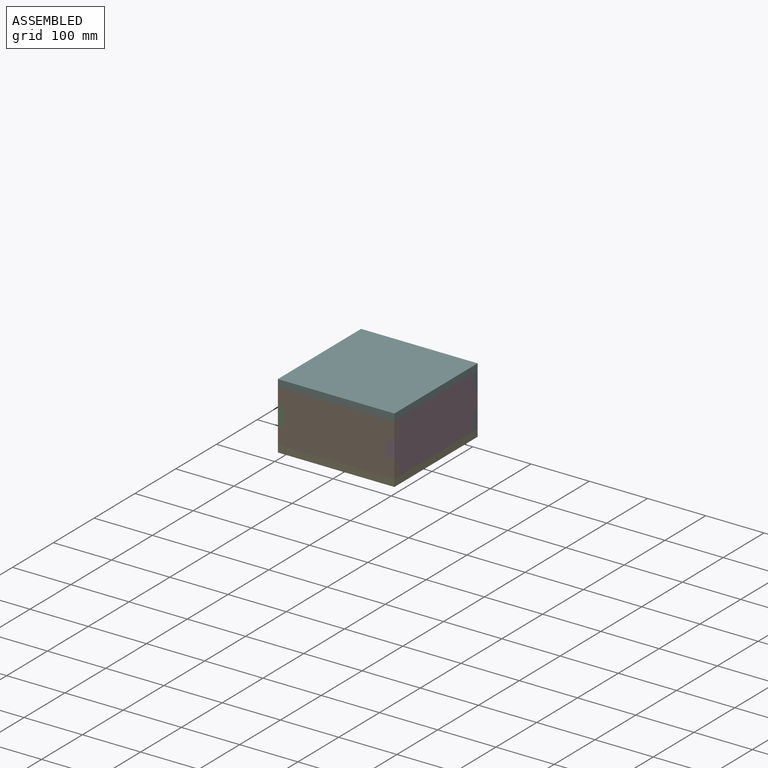
[diagram: assembled view]
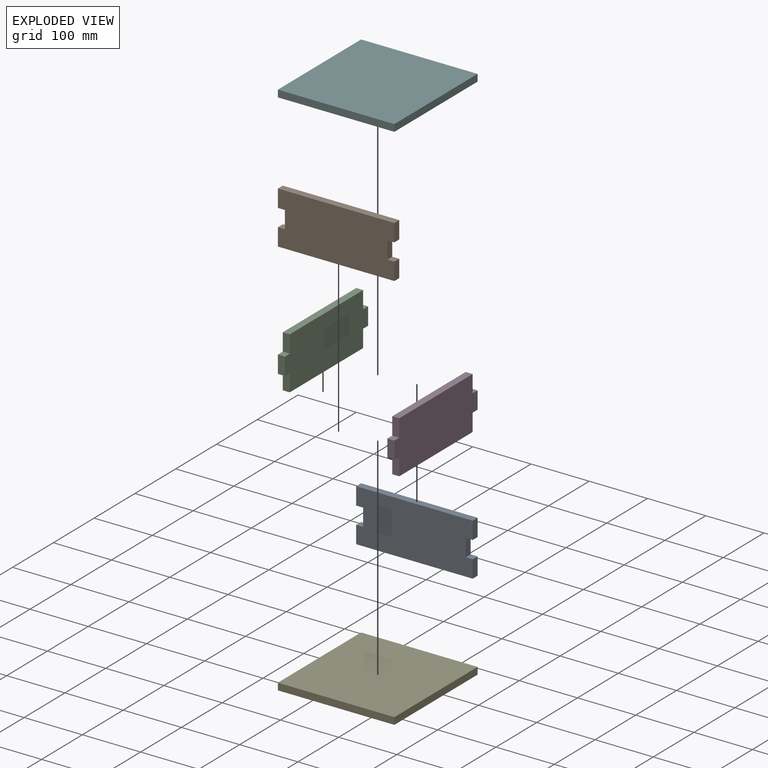
[diagram: exploded view]
GUIDED TOUR — MATED ASSEMBLY (Onshape document 58b383a48922001023aae967, AutoMate assembly 58b383a48922001023aae967_a988801f072670633765eb15_20cf71089305625ad288cfd9_default)

This assembly has 6 components, labeled P0..P5 below (a component is one placed occurrence of a part; the same part can appear more than once), held together by 5 mates. A mate is a constraint between two components; its type names the relative motion it leaves free:
  FASTENED — locks the two components together rigidly (no relative motion).
Axis/direction vectors are unit vectors and 'through' points are millimeter coordinates, both in the assembly's world frame.

MATES
  1. FASTENED "Fastened 2": P3 <-> P0, direction (-1.000, 0.000, 0.000) through (134.32, -25.53, -154.68) mm
  2. FASTENED "Fastened 5": P0 <-> P5, direction (0.000, 0.000, 1.000) through (-53.68, -25.53, -94.68) mm
  3. FASTENED "Fastened 3": P2 <-> P0, direction (0.000, 0.000, 1.000) through (-41.68, -25.53, -154.68) mm
  4. FASTENED "Fastened 1": P1 <-> P3, direction (0.000, 0.000, 1.000) through (134.32, -229.53, -154.68) mm
  5. FASTENED "Fastened 4": P4 <-> P0, direction (0.000, 0.000, 1.000) through (-53.68, -25.53, -184.68) mm

ASSEMBLY ORDER
  1. P3 — the base component [order verified]
  2. P2 [order verified]
  3. P0 [order verified]
  4. P1 [order verified]
  5. P5 [order verified]
  6. P4 [order verified]
Order-tag legend:
  [order verified] — this step's position reverses a verified removal order: the component was checked to insert without passing through the ones already placed.

Of the 6 components, 6 carry the full construction recipe — the FeatureScript program that regenerates the part's solid from scratch; the rest are supplied as boundary geometry only.
Each toured component is shown spotlighted twice — in the assembled view, then in the exploded view, where a leader line traces a displaced component back to its assembled socket (saturated green if recipe-attached, orange if geometry-only; every other component desaturated gray) — followed by its recipe or geometry summary and the mates that hold it.
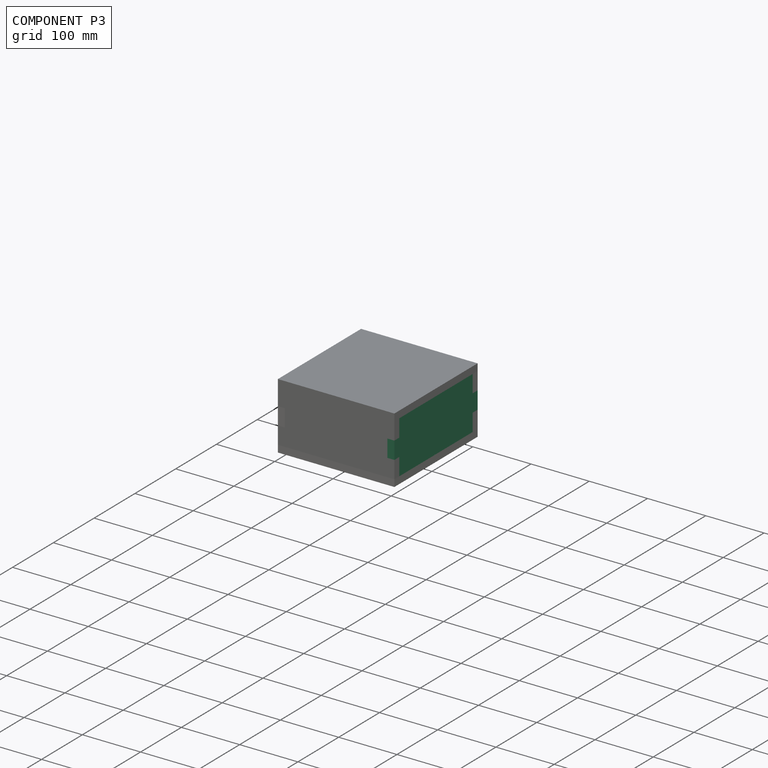
[diagram: component P3 — assembled]
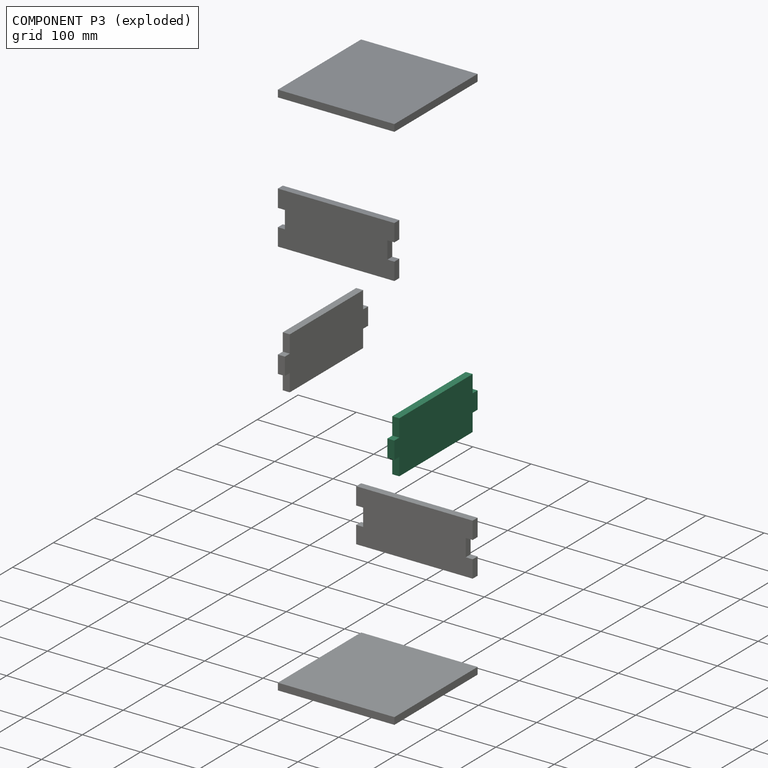
[diagram: component P3 — exploded]
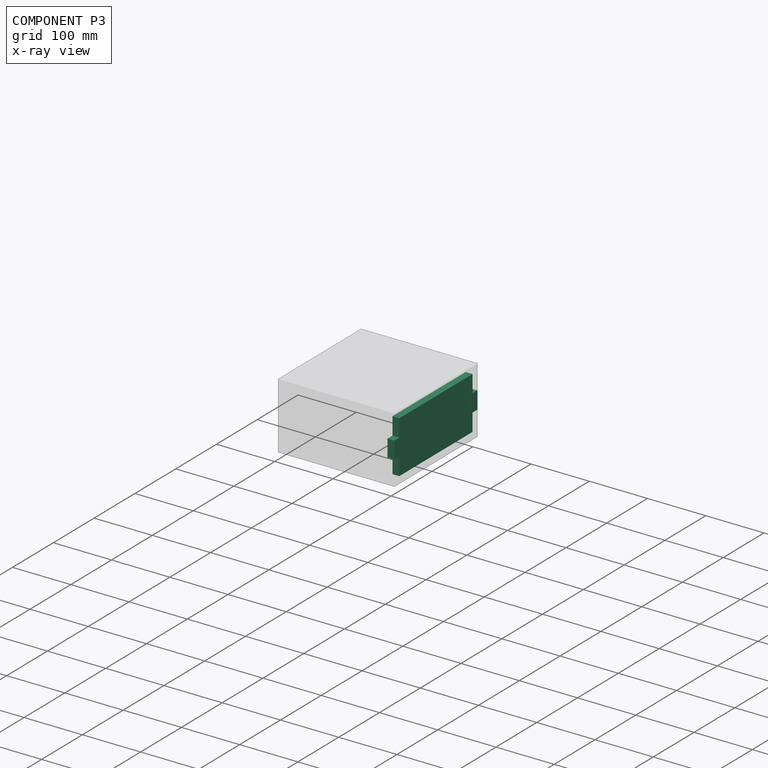
[diagram: component P3 — x-ray view]
COMPONENT P3 — same part as P2 (CADFS 00566922); its construction recipe is shown at P2.
Held by: FASTENED mate "Fastened 2" to P0; FASTENED mate "Fastened 1" to P1.
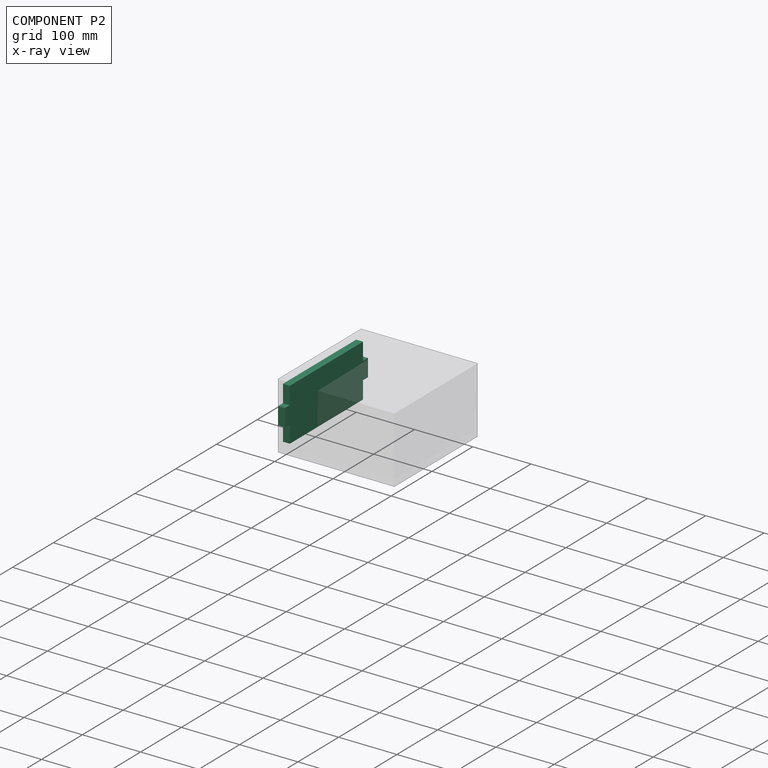
[diagram: component P2 — x-ray view]
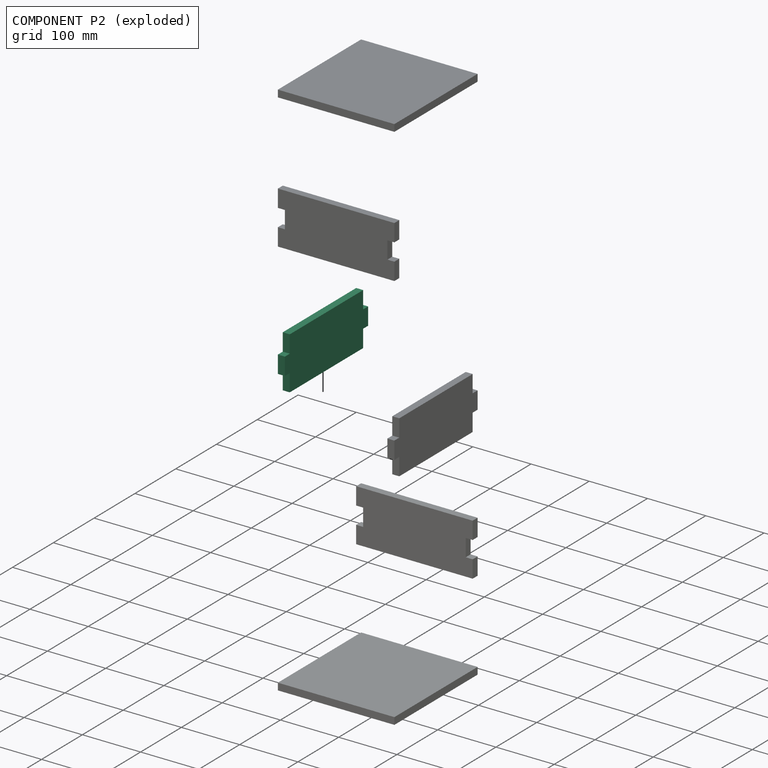
[diagram: component P2 — exploded]
COMPONENT P2 — recipe-attached (CADFS 00566922, mesh-verified: the recipe's output STEP matches this component's geometry to below the mesh-comparison resolution (tessellation chordal tolerance ~0.335 mm)).
Held by: FASTENED mate "Fastened 3" to P0.
Construction recipe (FeatureScript — the CAD program that rebuilds this solid; sketch coordinates are in the units given by the * unit suffixes, e.g. mm):

FeatureScript 1549;
import(path : "onshape/std/geometry.fs", version : "1549.0");
import(path : "onshape/std/common.fs", version : "1549.0");
const mm = millimeter;
const VERTEX = EntityType.VERTEX;
const EDGE = EntityType.EDGE;
const FACE = EntityType.FACE;
const BODY = EntityType.BODY;
function v(x, y){return vector(x, y);}
function OD(order){return orderDisambiguation(order);}
function OSD(set){return originalSetDisambiguation(set);}
function TD(topology){return topologyDisambiguation(topology);}
function TDD(query){return trueDependencyDisambiguation(query);}
function sQuery(a, b, c) {return sketchEntityQuery(a, b, c);}

annotation { "Feature Type Name" : "Feature", "Feature Type Description" : "" }
export const myFeature = defineFeature(function(context is Context, id is Id, definition is map)
    precondition{}
    {
        {
            var Q0;
            Q0=qCreatedBy(makeId("Right.planeOp"),FACE);
            var sketch = newSketch(context, id + "F0", { "sketchPlane" : qUnion([Q0])});
            skLineSegment(sketch, "E0", {"start": v(0, 0) * mm, "end": v(0, 30) * mm});
            skLineSegment(sketch, "E1", {"start": v(0, 30) * mm, "end": v(-12, 30) * mm});
            skLineSegment(sketch, "E2", {"start": v(-12, 30) * mm, "end": v(-12, 60) * mm});
            skLineSegment(sketch, "E3", {"start": v(-12, 60) * mm, "end": v(0, 60) * mm});
            skLineSegment(sketch, "E4", {"start": v(0, 60) * mm, "end": v(0, 90) * mm});
            skLineSegment(sketch, "E5", {"start": v(0, 0) * mm, "end": v(90, 0) * mm});
            skLineSegment(sketch, "E6", {"start": v(0, 90) * mm, "end": v(90, 90) * mm});
            skLineSegment(sketch, "E7", {"start": v(90, 90) * mm, "end": v(90, 0) * mm});
            skLineSegment(sketch, "E8.MirrorCS", {"start": v(192, 60) * mm, "end": v(180, 60) * mm});
            skLineSegment(sketch, "E9.MirrorCS", {"start": v(180, 30) * mm, "end": v(192, 30) * mm});
            skLineSegment(sketch, "E10.MirrorCS", {"start": v(180, 0) * mm, "end": v(180, 30) * mm});
            skLineSegment(sketch, "E11.MirrorCS", {"start": v(192, 30) * mm, "end": v(192, 60) * mm});
            skLineSegment(sketch, "E12.MirrorCS", {"start": v(180, 60) * mm, "end": v(180, 90) * mm});
            skLineSegment(sketch, "E13.MirrorCS", {"start": v(180, 0) * mm, "end": v(90, 0) * mm});
            skLineSegment(sketch, "E14.MirrorCS", {"start": v(180, 90) * mm, "end": v(90, 90) * mm});
            skSolve(sketch);
        }
        {
            var Q0;
            Q0 = qSketchRegion(id + "F0", true);
            extrude(context, id + "F1", {"entities" : qUnion([Q0]), "depth" : 12 * mm, "offsetDistance" : 25 * mm});
        }
    });
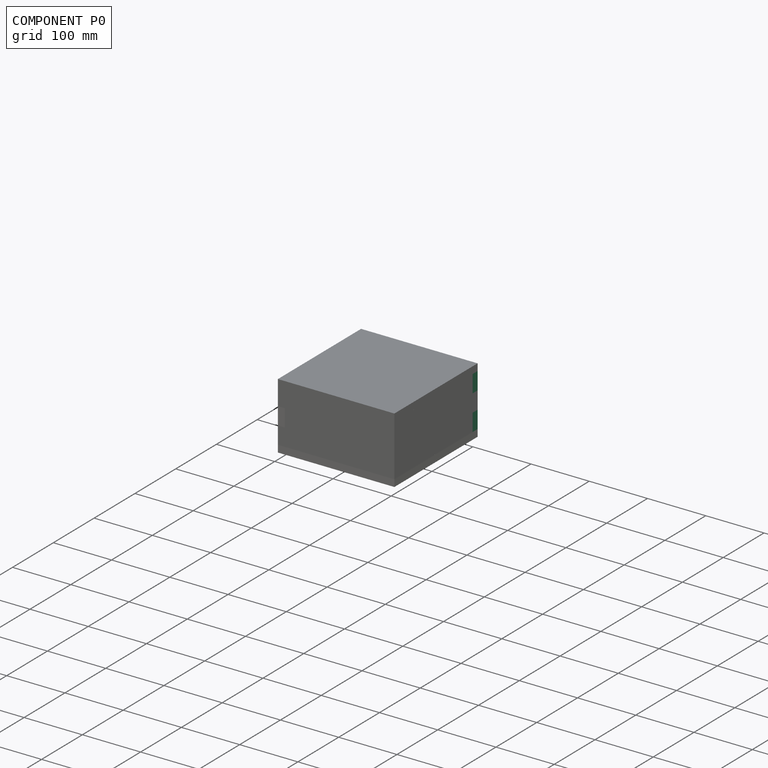
[diagram: component P0 — assembled]
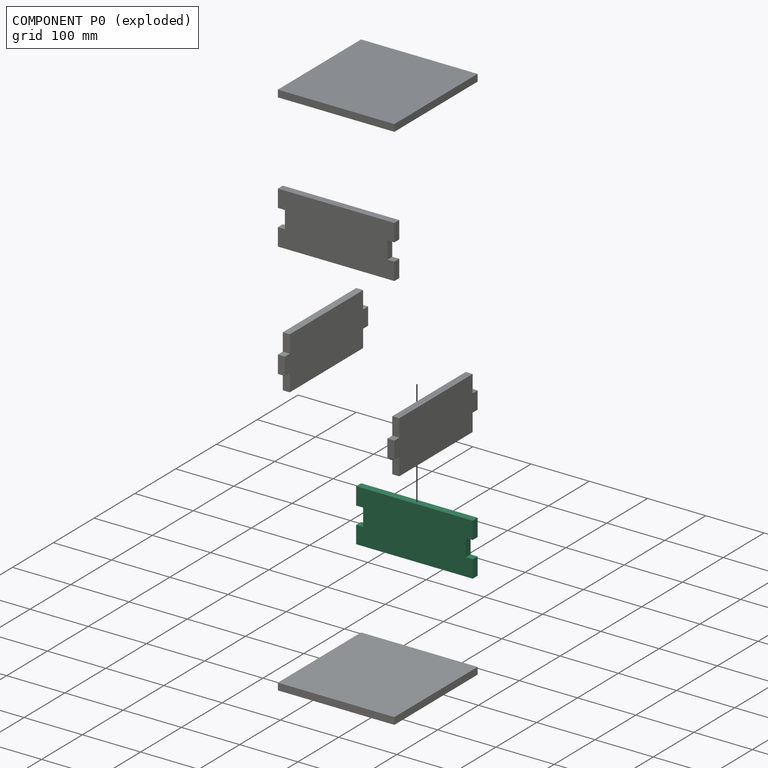
[diagram: component P0 — exploded]
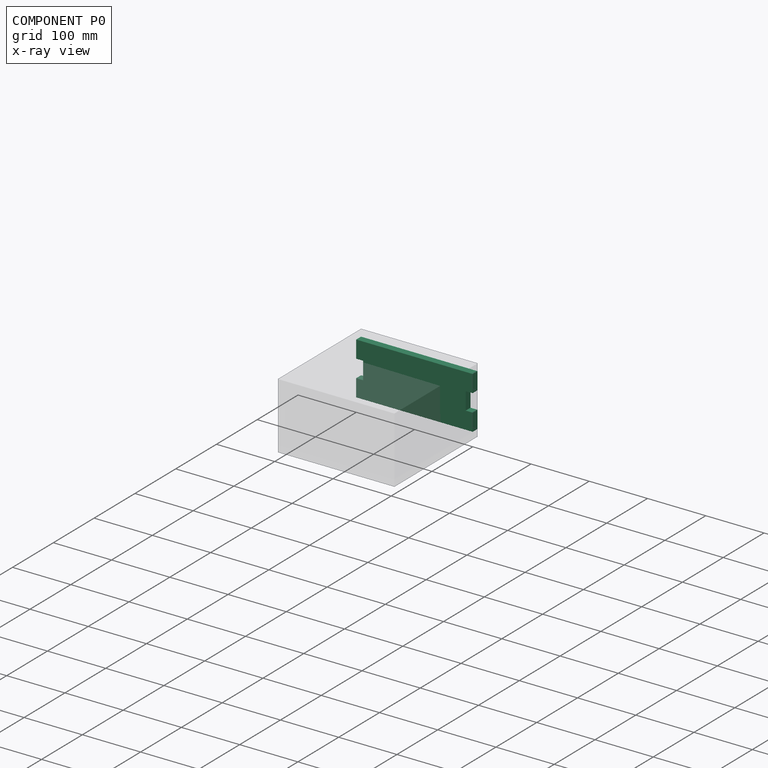
[diagram: component P0 — x-ray view]
COMPONENT P0 — recipe-attached (CADFS 00566921, mesh-verified: the recipe's output STEP matches this component's geometry to below the mesh-comparison resolution (tessellation chordal tolerance ~0.329 mm)).
Held by: FASTENED mate "Fastened 2" to P3; FASTENED mate "Fastened 5" to P5; FASTENED mate "Fastened 3" to P2; FASTENED mate "Fastened 4" to P4.
Construction recipe (FeatureScript — the CAD program that rebuilds this solid; sketch coordinates are in the units given by the * unit suffixes, e.g. mm):

FeatureScript 1549;
import(path : "onshape/std/geometry.fs", version : "1549.0");
import(path : "onshape/std/common.fs", version : "1549.0");
const mm = millimeter;
const VERTEX = EntityType.VERTEX;
const EDGE = EntityType.EDGE;
const FACE = EntityType.FACE;
const BODY = EntityType.BODY;
function v(x, y){return vector(x, y);}
function OD(order){return orderDisambiguation(order);}
function OSD(set){return originalSetDisambiguation(set);}
function TD(topology){return topologyDisambiguation(topology);}
function TDD(query){return trueDependencyDisambiguation(query);}
function sQuery(a, b, c) {return sketchEntityQuery(a, b, c);}

annotation { "Feature Type Name" : "Feature", "Feature Type Description" : "" }
export const myFeature = defineFeature(function(context is Context, id is Id, definition is map)
    precondition{}
    {
        {
            var Q0;
            Q0=qCreatedBy(makeId("Front.planeOp"),FACE);
            var sketch = newSketch(context, id + "F0", { "sketchPlane" : qUnion([Q0])});
            skLineSegment(sketch, "E0", {"start": v(0, 0) * mm, "end": v(0, 30) * mm});
            skLineSegment(sketch, "E1", {"start": v(0, 30) * mm, "end": v(12, 30) * mm});
            skLineSegment(sketch, "E2", {"start": v(12, 30) * mm, "end": v(12, 60) * mm});
            skLineSegment(sketch, "E3", {"start": v(12, 60) * mm, "end": v(0, 60) * mm});
            skLineSegment(sketch, "E4", {"start": v(0, 60) * mm, "end": v(0, 90) * mm});
            skLineSegment(sketch, "E5", {"start": v(0, 90) * mm, "end": v(100, 90) * mm});
            skLineSegment(sketch, "E6", {"start": v(100, 90) * mm, "end": v(100, 0) * mm, "construction": true});
            skLineSegment(sketch, "E7", {"start": v(100, 0) * mm, "end": v(0, 0) * mm});
            skLineSegment(sketch, "E8.MirrorCS", {"start": v(200, 30) * mm, "end": v(188, 30) * mm});
            skLineSegment(sketch, "E9.MirrorCS", {"start": v(188, 30) * mm, "end": v(188, 60) * mm});
            skLineSegment(sketch, "E10.MirrorCS", {"start": v(200, 60) * mm, "end": v(200, 90) * mm});
            skLineSegment(sketch, "E11.MirrorCS", {"start": v(200, 0) * mm, "end": v(200, 30) * mm});
            skLineSegment(sketch, "E12.MirrorCS", {"start": v(200, 90) * mm, "end": v(100, 90) * mm});
            skLineSegment(sketch, "E13.MirrorCS", {"start": v(188, 60) * mm, "end": v(200, 60) * mm});
            skLineSegment(sketch, "E14.MirrorCS", {"start": v(100, 0) * mm, "end": v(200, 0) * mm});
            skSolve(sketch);
        }
        {
            var Q0;
            Q0=qSketchRegion(id+"F0",true);
            extrude(context, id + "F1", {"entities" : qUnion([Q0]), "depth" : 12 * mm, "offsetDistance" : 25 * mm});
        }
    });
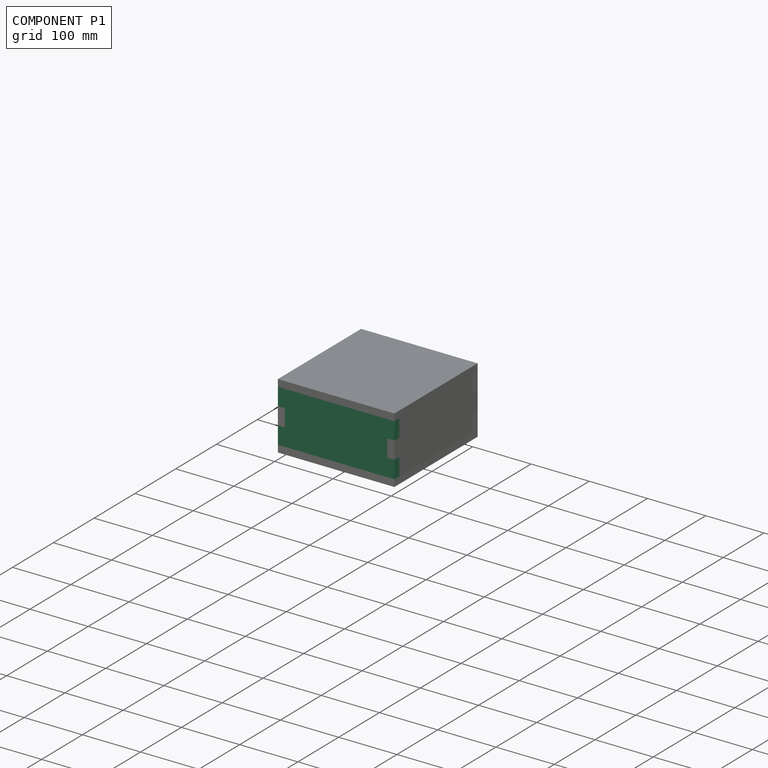
[diagram: component P1 — assembled]
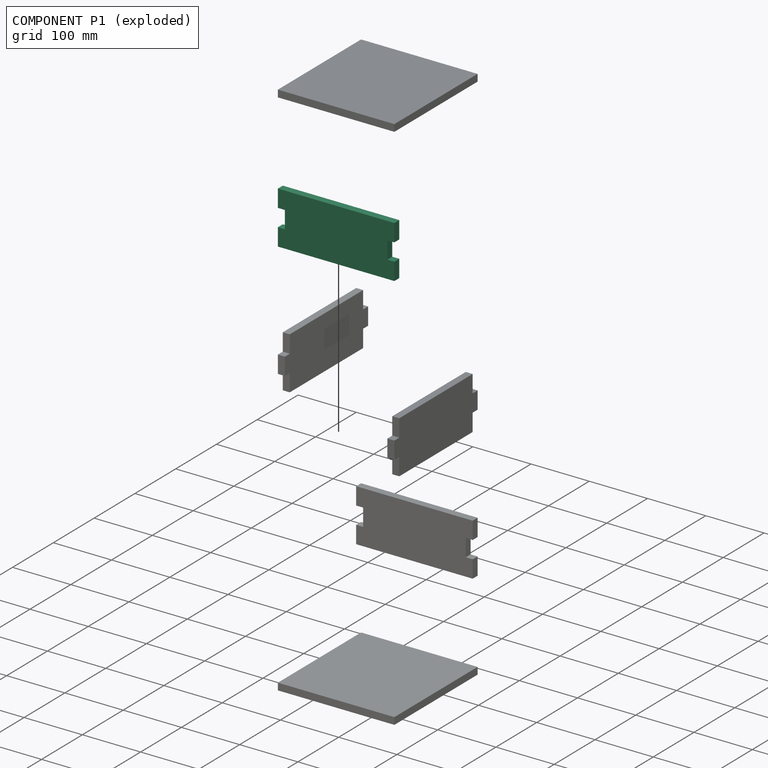
[diagram: component P1 — exploded]
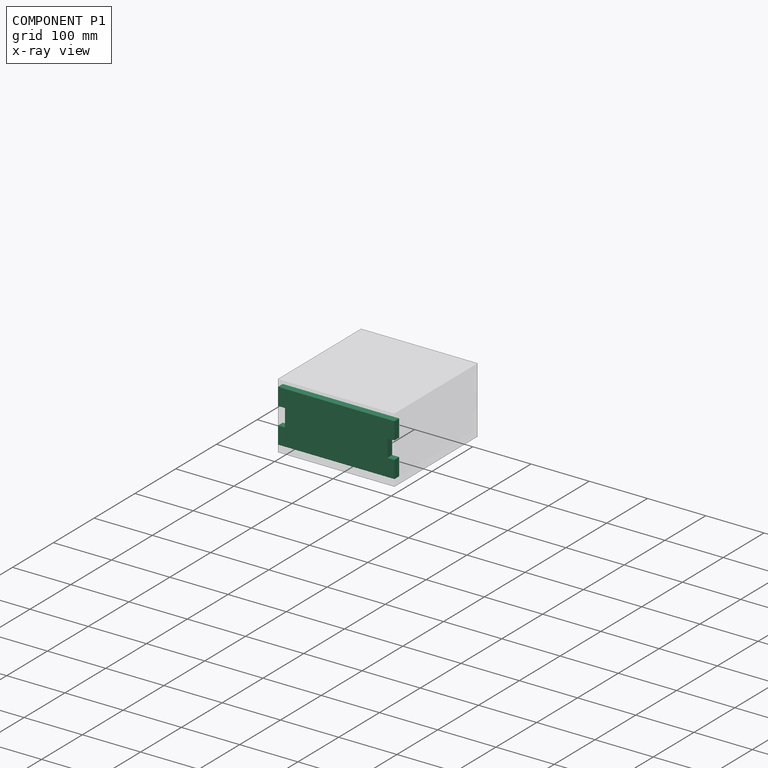
[diagram: component P1 — x-ray view]
COMPONENT P1 — same part as P0 (CADFS 00566921); its construction recipe is shown at P0.
Held by: FASTENED mate "Fastened 1" to P3.
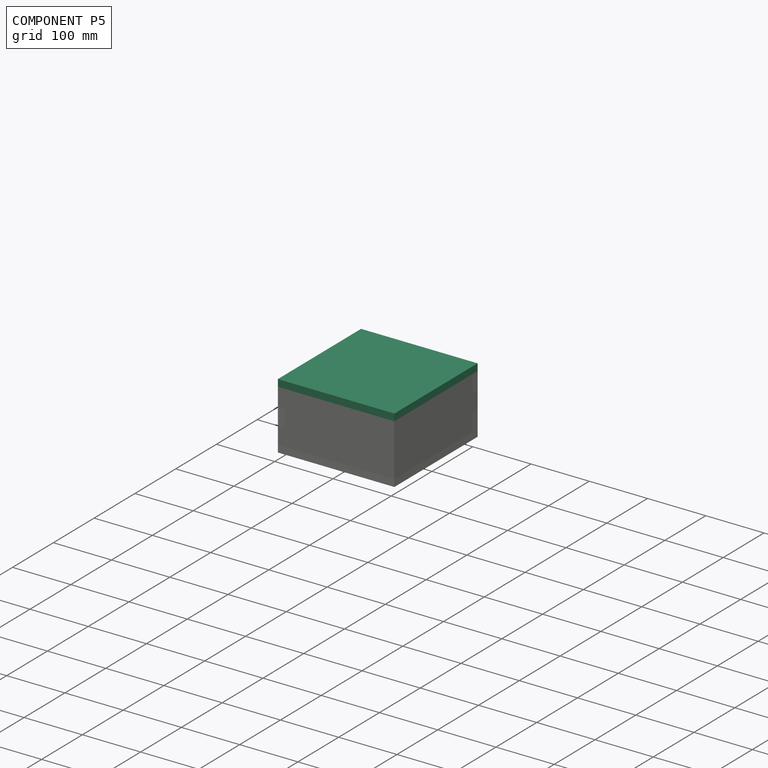
[diagram: component P5 — assembled]
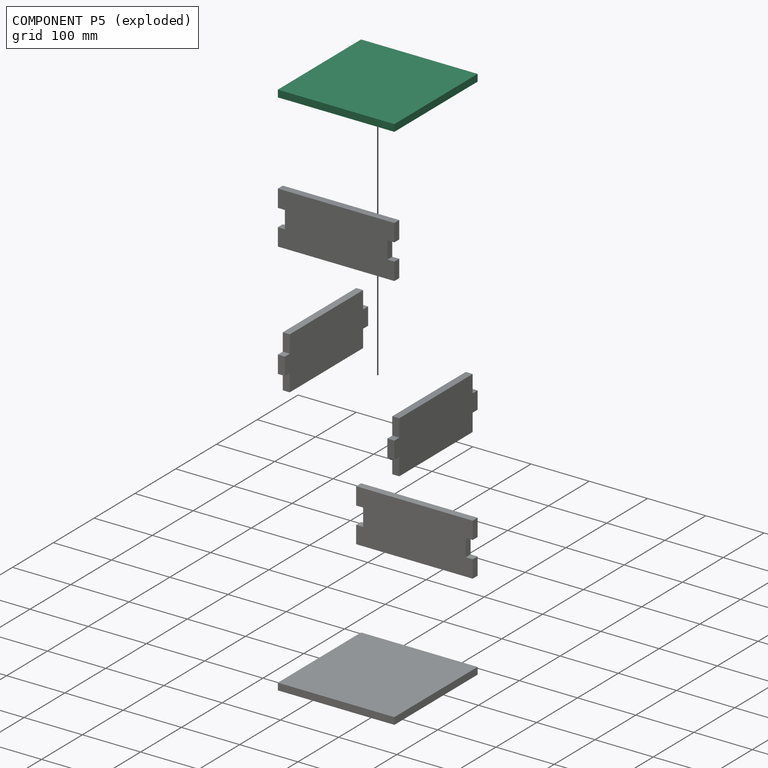
[diagram: component P5 — exploded]
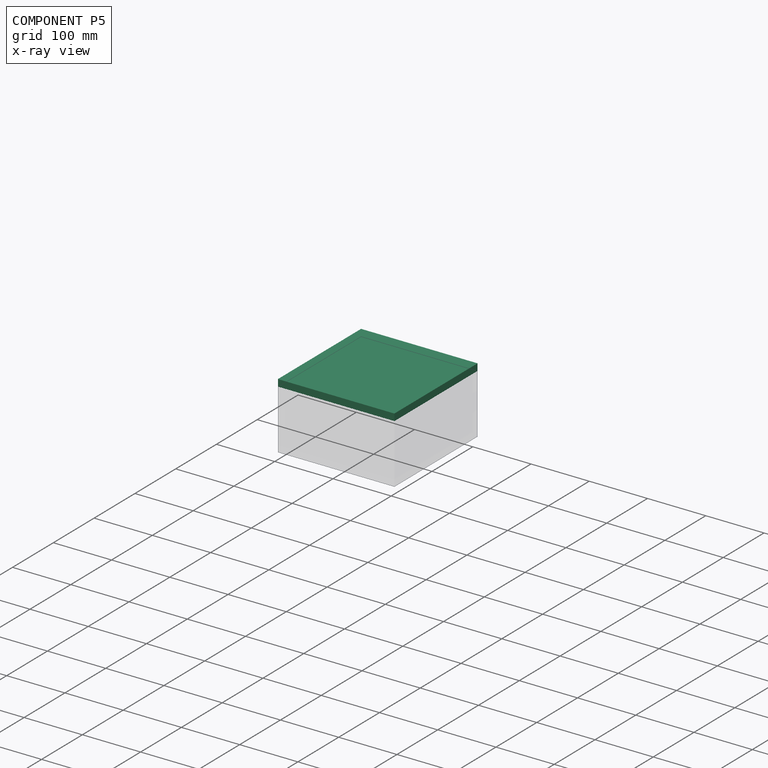
[diagram: component P5 — x-ray view]
COMPONENT P5 — same part as P4 (CADFS 00566923); its construction recipe is shown at P4.
Held by: FASTENED mate "Fastened 5" to P0.
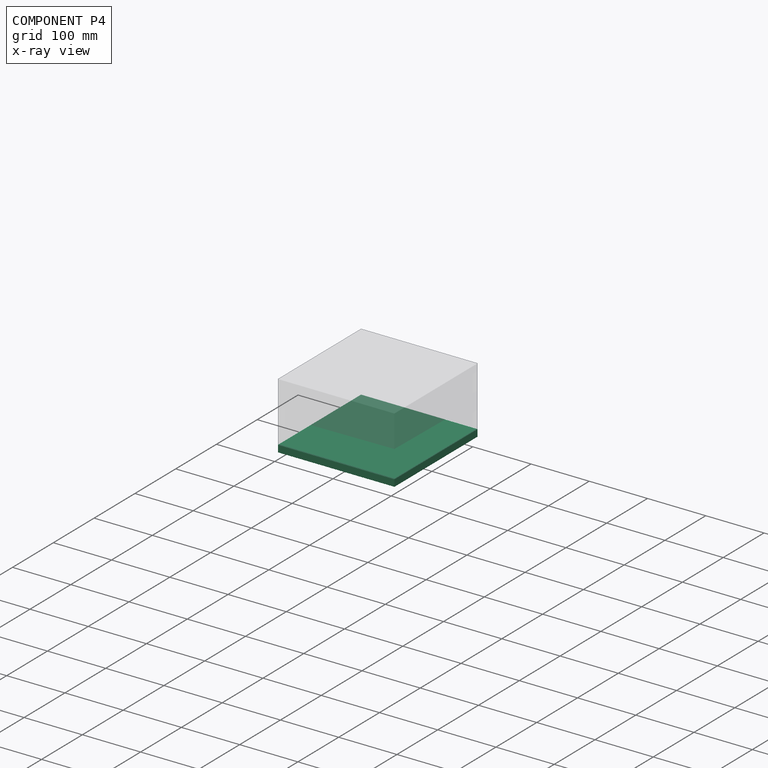
[diagram: component P4 — x-ray view]
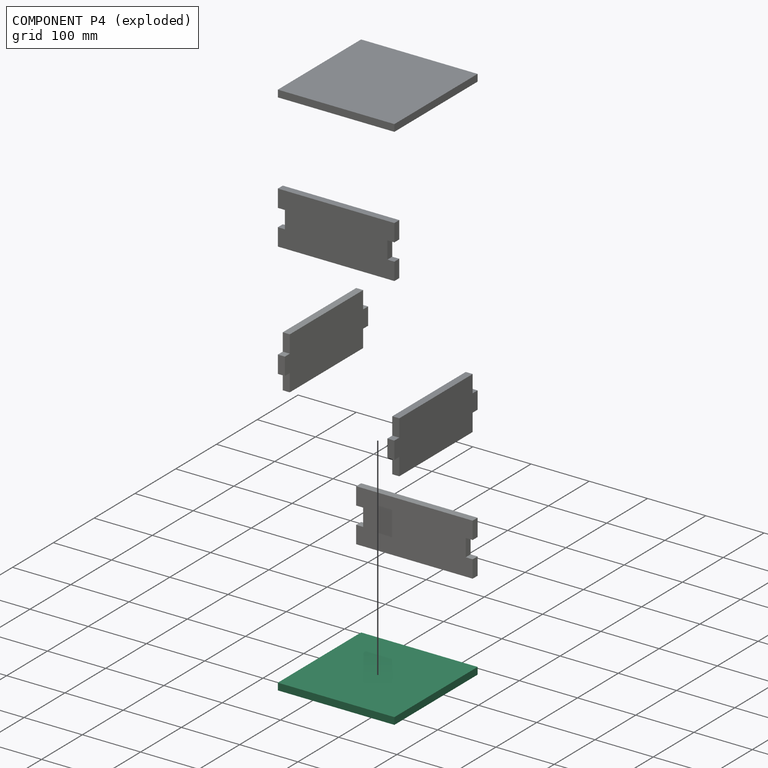
[diagram: component P4 — exploded]
COMPONENT P4 — recipe-attached (CADFS 00566923, mesh-verified: the recipe's output STEP matches this component's geometry to below the mesh-comparison resolution (tessellation chordal tolerance ~0.429 mm)).
Held by: FASTENED mate "Fastened 4" to P0.
Construction recipe (FeatureScript — the CAD program that rebuilds this solid; sketch coordinates are in the units given by the * unit suffixes, e.g. mm):

FeatureScript 1549;
import(path : "onshape/std/geometry.fs", version : "1549.0");
import(path : "onshape/std/common.fs", version : "1549.0");
const mm = millimeter;
const VERTEX = EntityType.VERTEX;
const EDGE = EntityType.EDGE;
const FACE = EntityType.FACE;
const BODY = EntityType.BODY;
function v(x, y){return vector(x, y);}
function OD(order){return orderDisambiguation(order);}
function OSD(set){return originalSetDisambiguation(set);}
function TD(topology){return topologyDisambiguation(topology);}
function TDD(query){return trueDependencyDisambiguation(query);}
function sQuery(a, b, c) {return sketchEntityQuery(a, b, c);}

annotation { "Feature Type Name" : "Feature", "Feature Type Description" : "" }
export const myFeature = defineFeature(function(context is Context, id is Id, definition is map)
    precondition{}
    {
        {
            var Q0;
            Q0=qCreatedBy(makeId("Top.planeOp"),FACE);
            var sketch = newSketch(context, id + "F0", { "sketchPlane" : qUnion([Q0])});
            skLineSegment(sketch, "E0", {"start": v(0, 0) * mm, "end": v(200, 0) * mm});
            skLineSegment(sketch, "E1", {"start": v(200, 0) * mm, "end": v(200, -204) * mm});
            skLineSegment(sketch, "E2", {"start": v(200, -204) * mm, "end": v(0, -204) * mm});
            skLineSegment(sketch, "E3", {"start": v(0, -204) * mm, "end": v(0, 0) * mm});
            skSolve(sketch);
        }
        {
            var Q0;
            Q0 = qSketchRegion(id + "F0", true);
            extrude(context, id + "F1", {"entities" : qUnion([Q0]), "depth" : 12 * mm, "offsetDistance" : 25 * mm});
        }
    });
PROVENANCE & LICENSES
Assembly (occurrences, transforms, mates, per-part STEP geometry): AutoMate dataset, Zenodo record 7776208, CC0.
Construction recipes: CADFS (HuggingFace VladPyatov/CADFS, CC-BY-4.0, layered over the ABC dataset), FeatureScript reconstruction programs keyed by ABC model id.
Join: ABC meta listings map ABC model id -> Onshape documentId; within a shared document, parts are matched by geometric signature (bounding-box dims + volume at 0.1% relative tolerance, exact B-rep face/solid counts).
Verification: 6 of this assembly's 6 components carry a recipe attachment, and every attachment is mesh-verified: the CADFS STEP and the AutoMate member STEP were compared as meshes in their shared local frame (symmetric sampled-point-to-mesh distance); worst across the 6 attachments: below the mesh-comparison resolution (tessellation chordal tolerance ~0.429 mm) on a 286 mm part.
Renders: orthographic iso camera (az 35 / el 25); the floor grid conveys scale (grid pitch printed in each image; no ruler). In the exploded view each component is displaced by its stored offset vector: the offsets alone carry the explosion direction (mate normal/axis signs are not orientation cues and do not encode it), and separation distances are assigned per mate-chain, not proportionally to assembly-order depth.
